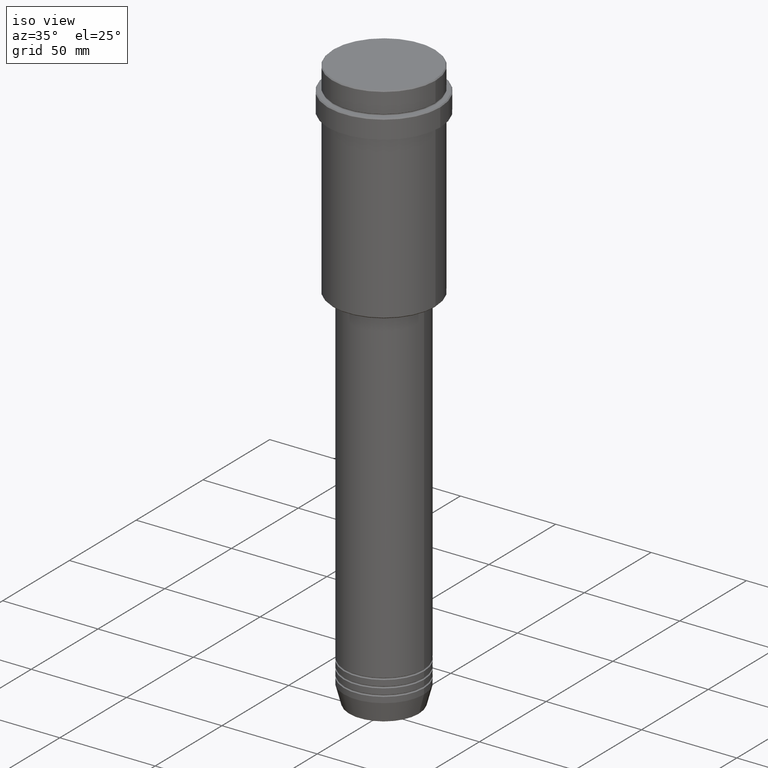
[diagram: clean part render]
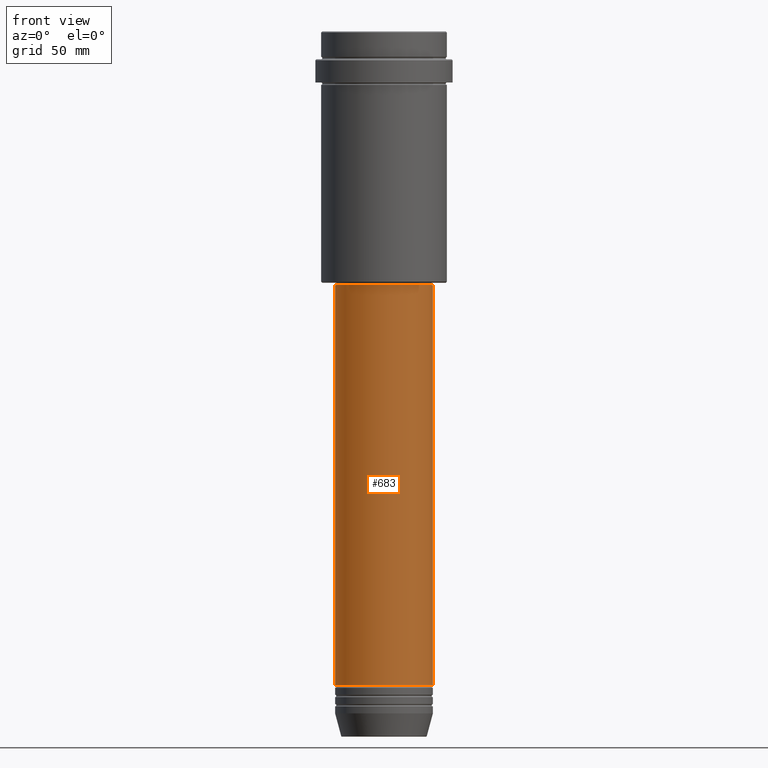
[diagram: tour spotlight — one face highlighted and labeled with its STEP entity id]
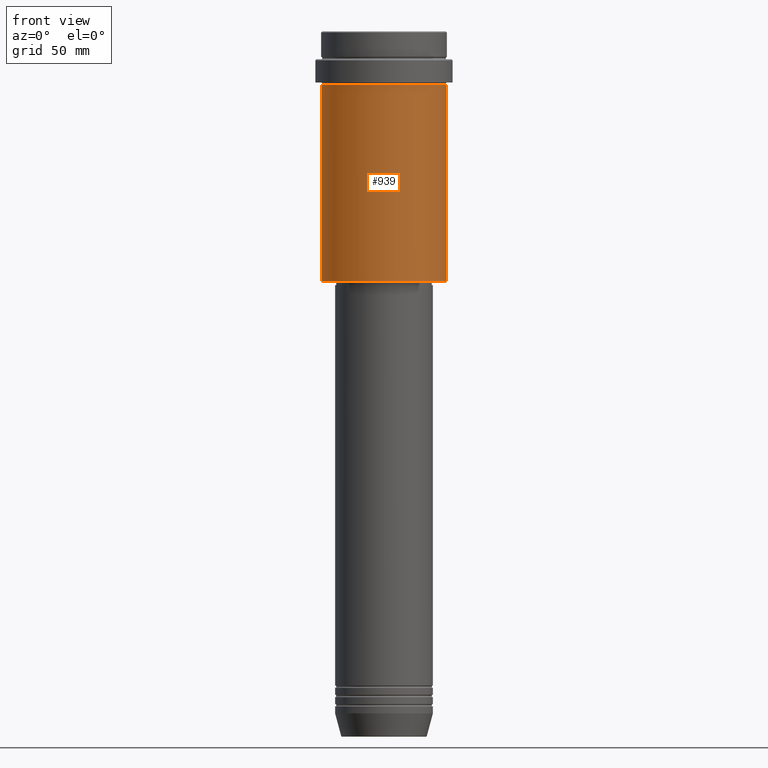
[diagram: tour spotlight — one face highlighted and labeled with its STEP entity id]
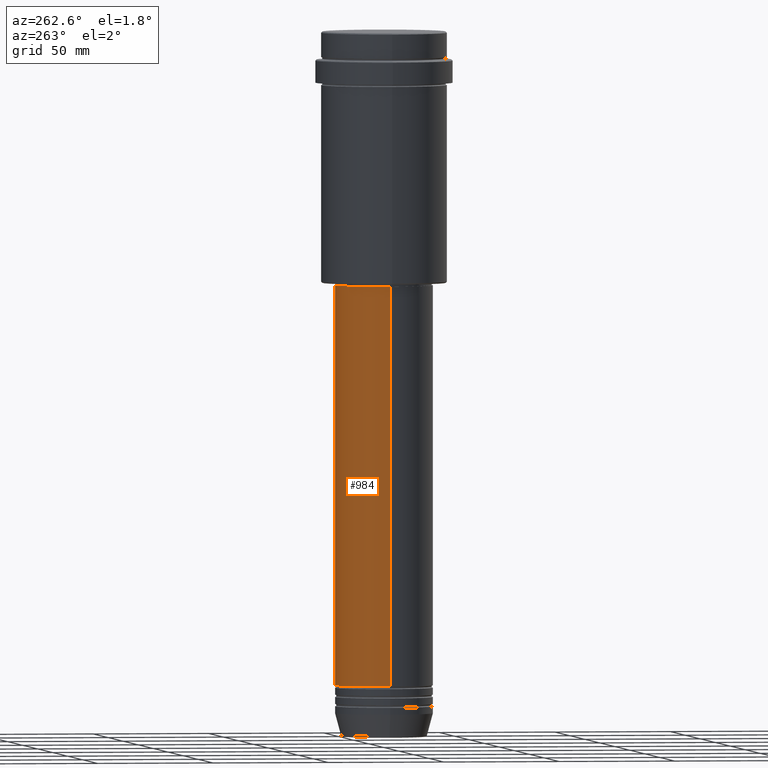
[diagram: tour spotlight — one face highlighted and labeled with its STEP entity id]
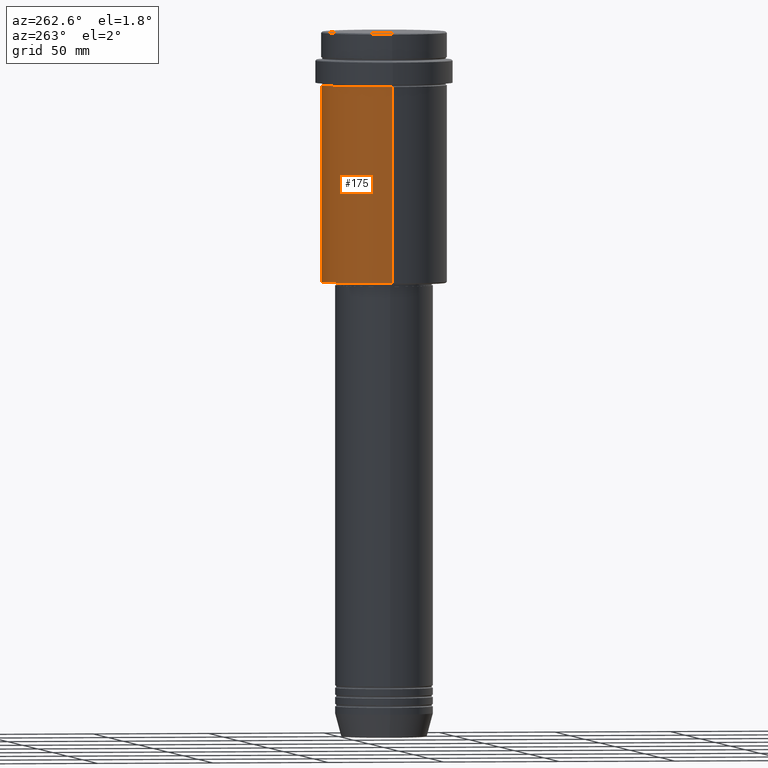
[diagram: tour spotlight — one face highlighted and labeled with its STEP entity id]
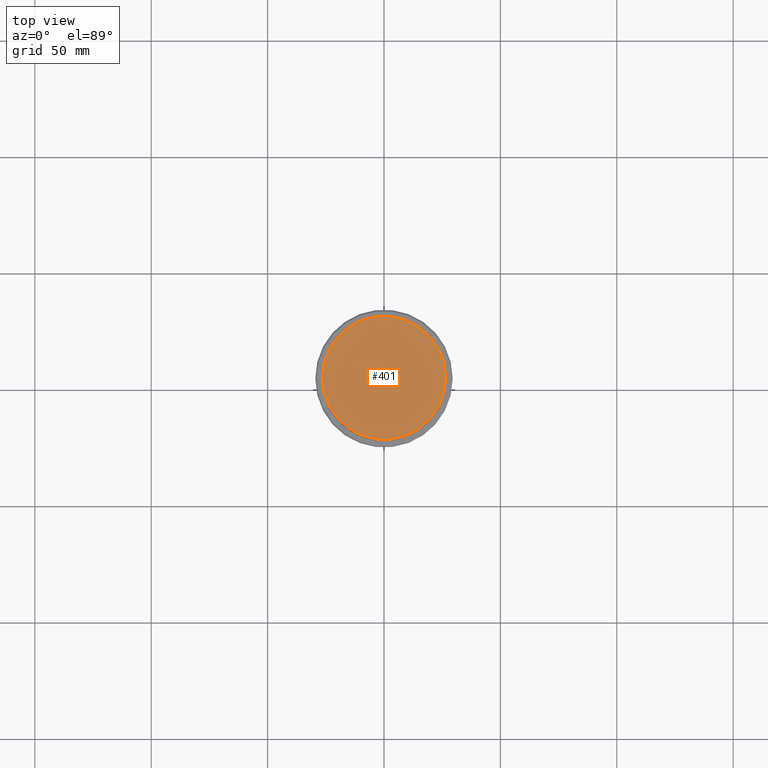
[diagram: tour spotlight — one face highlighted and labeled with its STEP entity id]
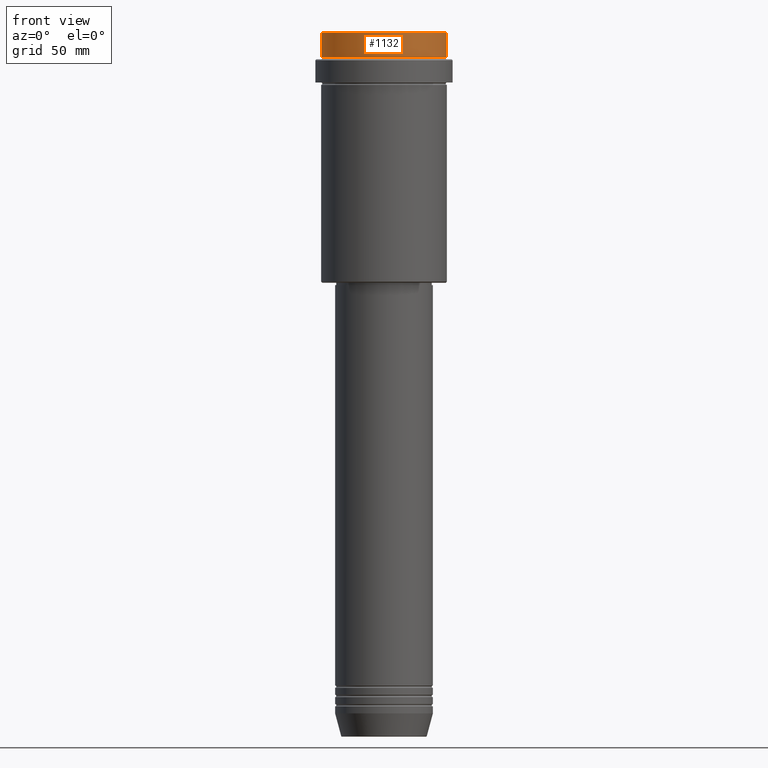
[diagram: tour spotlight — one face highlighted and labeled with its STEP entity id]
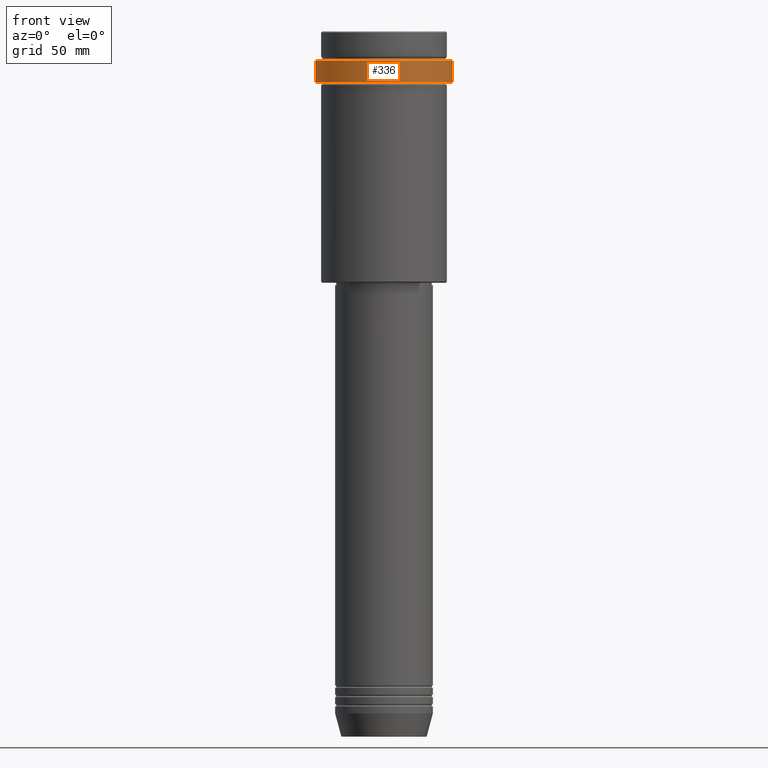
[diagram: tour spotlight — one face highlighted and labeled with its STEP entity id]
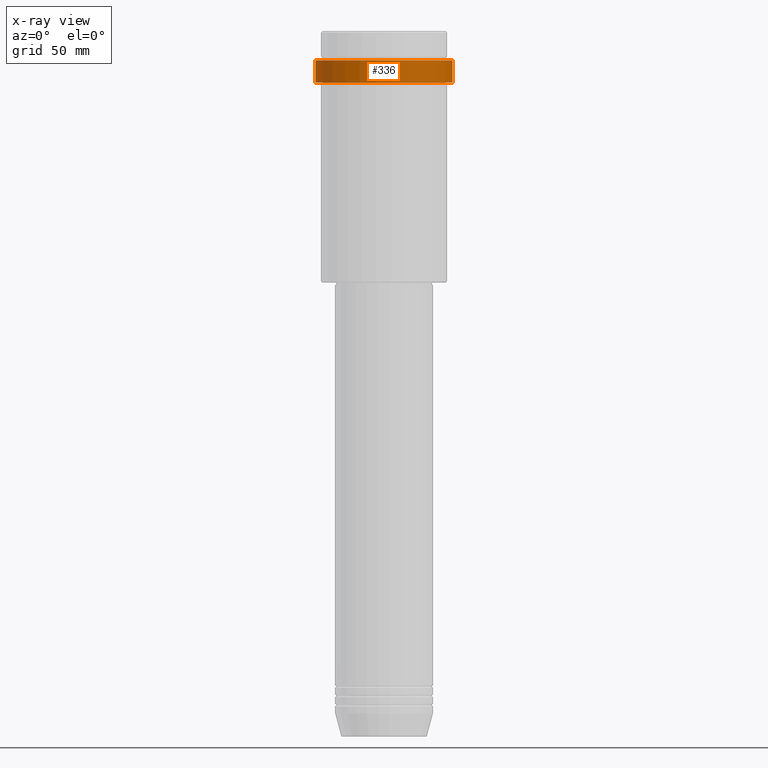
[diagram: x-ray of the same camera — body ghosted, this tour face saturated]
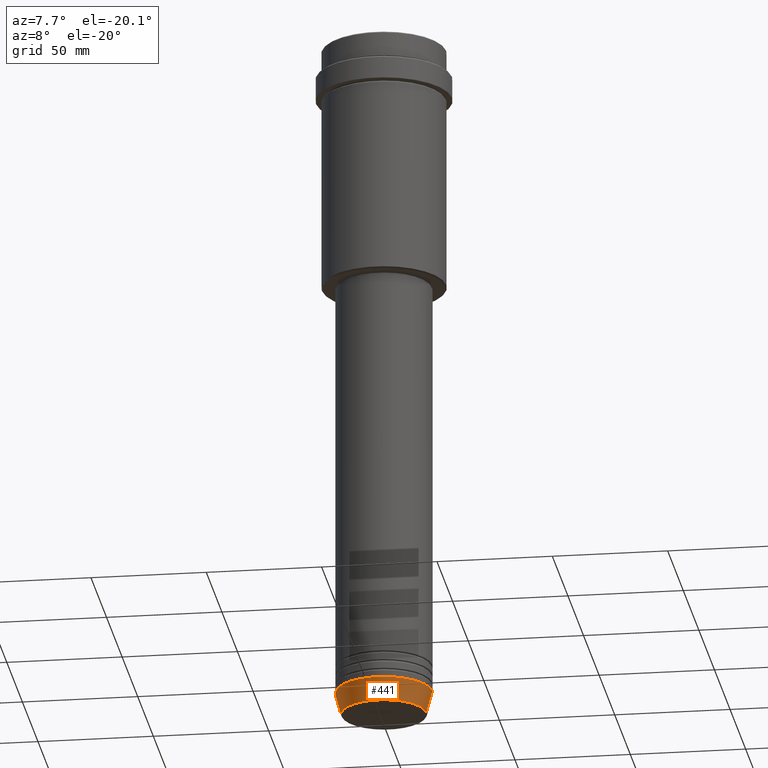
[diagram: tour spotlight — one face highlighted and labeled with its STEP entity id]
A machine part: a face-by-face anatomy tour. The part has 52 B-rep faces; the first image is the clean iso view, then the 8 largest visible faces are spotlighted one at a time (largest first), each with its STEP entity span.

Face 1 — front view, entity #683. In plain terms, the highlighted cylindrical surface (partial cylindrical patch) has radius 21 mm, axis along (-0, -0, 1).
Definition (entity closure, byte-faithful):
#4 = CARTESIAN_POINT ( 'NONE',  ( 21.00000000000000000, 0.000000000000000000, 0.000000000000000000 ) ) ;
#39 = ORIENTED_EDGE ( 'NONE', *, *, #613, .T. ) ;
#52 = CYLINDRICAL_SURFACE ( 'NONE', #696, 21.00000000000000000 ) ;
#57 = DIRECTION ( 'NONE',  ( 1.000000000000000000, 0.000000000000000000, 0.000000000000000000 ) ) ;
#137 = CIRCLE ( 'NONE', #805, 21.00000000000000000 ) ;
#152 = DIRECTION ( 'NONE',  ( 1.000000000000000000, 0.000000000000000000, 0.000000000000000000 ) ) ;
#168 = DIRECTION ( 'NONE',  ( 1.000000000000000000, 0.000000000000000000, 0.000000000000000000 ) ) ;
#170 = CARTESIAN_POINT ( 'NONE',  ( -21.00000000000000000, 2.571758278209441661E-15, -280.9999999999999432 ) ) ;
#213 = ORIENTED_EDGE ( 'NONE', *, *, #1128, .F. ) ;
#217 = LINE ( 'NONE', #4, #402 ) ;
#230 = VERTEX_POINT ( 'NONE', #170 ) ;
#387 = VERTEX_POINT ( 'NONE', #1331 ) ;
#398 = EDGE_CURVE ( 'NONE', #980, #387, #217, .T. ) ;
#402 = VECTOR ( 'NONE', #1108, 1000.000000000000000 ) ;
#444 = EDGE_LOOP ( 'NONE', ( #1009, #39, #859, #213 ) ) ;
#507 = FACE_OUTER_BOUND ( 'NONE', #444, .T. ) ;
#522 = VERTEX_POINT ( 'NONE', #878 ) ;
#584 = CIRCLE ( 'NONE', #764, 21.00000000000000000 ) ;
#613 = EDGE_CURVE ( 'NONE', #230, #980, #137, .T. ) ;
#683 = ADVANCED_FACE ( 'NONE', ( #507 ), #52, .T. ) ;
#696 = AXIS2_PLACEMENT_3D ( 'NONE', #1036, #1145, #57 ) ;
#698 = CARTESIAN_POINT ( 'NONE',  ( 0.000000000000000000, 0.000000000000000000, -280.9999999999999432 ) ) ;
#764 = AXIS2_PLACEMENT_3D ( 'NONE', #1243, #1142, #168 ) ;
#775 = CARTESIAN_POINT ( 'NONE',  ( 21.00000000000000000, 0.000000000000000000, -280.9999999999999432 ) ) ;
#805 = AXIS2_PLACEMENT_3D ( 'NONE', #698, #1126, #152 ) ;
#859 = ORIENTED_EDGE ( 'NONE', *, *, #398, .T. ) ;
#878 = CARTESIAN_POINT ( 'NONE',  ( -21.00000000000000000, 2.571758278209441661E-15, -108.9999999999999289 ) ) ;
#952 = LINE ( 'NONE', #1383, #1146 ) ;
#980 = VERTEX_POINT ( 'NONE', #775 ) ;
#1009 = ORIENTED_EDGE ( 'NONE', *, *, #1296, .F. ) ;
#1036 = CARTESIAN_POINT ( 'NONE',  ( 0.000000000000000000, 0.000000000000000000, 0.000000000000000000 ) ) ;
#1108 = DIRECTION ( 'NONE',  ( -0.000000000000000000, -0.000000000000000000, 1.000000000000000000 ) ) ;
#1126 = DIRECTION ( 'NONE',  ( -0.000000000000000000, -0.000000000000000000, 1.000000000000000000 ) ) ;
#1128 = EDGE_CURVE ( 'NONE', #522, #387, #584, .T. ) ;
#1142 = DIRECTION ( 'NONE',  ( -0.000000000000000000, -0.000000000000000000, 1.000000000000000000 ) ) ;
#1145 = DIRECTION ( 'NONE',  ( -0.000000000000000000, -0.000000000000000000, 1.000000000000000000 ) ) ;
#1146 = VECTOR ( 'NONE', #1152, 1000.000000000000000 ) ;
#1152 = DIRECTION ( 'NONE',  ( -0.000000000000000000, -0.000000000000000000, 1.000000000000000000 ) ) ;
#1243 = CARTESIAN_POINT ( 'NONE',  ( 0.000000000000000000, 0.000000000000000000, -108.9999999999999289 ) ) ;
#1296 = EDGE_CURVE ( 'NONE', #230, #522, #952, .T. ) ;
#1331 = CARTESIAN_POINT ( 'NONE',  ( 21.00000000000000000, 0.000000000000000000, -108.9999999999999289 ) ) ;
#1383 = CARTESIAN_POINT ( 'NONE',  ( -21.00000000000000000, 2.571758278209441661E-15, 0.000000000000000000 ) ) ;

Face 2 — front view, entity #939. In plain terms, the highlighted cylindrical surface (partial cylindrical patch) has radius 27 mm, axis along (-0, -0, 1).
Definition (entity closure, byte-faithful):
#139 = AXIS2_PLACEMENT_3D ( 'NONE', #947, #284, #959 ) ;
#147 = DIRECTION ( 'NONE',  ( -0.000000000000000000, -0.000000000000000000, 1.000000000000000000 ) ) ;
#148 = VERTEX_POINT ( 'NONE', #792 ) ;
#215 = FACE_OUTER_BOUND ( 'NONE', #499, .T. ) ;
#227 = ORIENTED_EDGE ( 'NONE', *, *, #654, .F. ) ;
#231 = DIRECTION ( 'NONE',  ( -0.000000000000000000, -0.000000000000000000, 1.000000000000000000 ) ) ;
#241 = CYLINDRICAL_SURFACE ( 'NONE', #308, 27.00000000000000355 ) ;
#271 = CARTESIAN_POINT ( 'NONE',  ( -27.00000000000000355, 3.306546357697854128E-15, 0.000000000000000000 ) ) ;
#284 = DIRECTION ( 'NONE',  ( -0.000000000000000000, -0.000000000000000000, 1.000000000000000000 ) ) ;
#308 = AXIS2_PLACEMENT_3D ( 'NONE', #335, #231, #325 ) ;
#325 = DIRECTION ( 'NONE',  ( 1.000000000000000000, 0.000000000000000000, 0.000000000000000000 ) ) ;
#335 = CARTESIAN_POINT ( 'NONE',  ( 0.000000000000000000, 0.000000000000000000, 0.000000000000000000 ) ) ;
#349 = CARTESIAN_POINT ( 'NONE',  ( 27.00000000000000355, 0.000000000000000000, 0.000000000000000000 ) ) ;
#423 = EDGE_CURVE ( 'NONE', #680, #1194, #1300, .T. ) ;
#472 = AXIS2_PLACEMENT_3D ( 'NONE', #1200, #1403, #567 ) ;
#499 = EDGE_LOOP ( 'NONE', ( #227, #1247, #1368, #941 ) ) ;
#562 = VECTOR ( 'NONE', #776, 1000.000000000000000 ) ;
#567 = DIRECTION ( 'NONE',  ( 1.000000000000000000, 0.000000000000000000, 0.000000000000000000 ) ) ;
#602 = VERTEX_POINT ( 'NONE', #687 ) ;
#617 = CARTESIAN_POINT ( 'NONE',  ( 27.00000000000000355, 0.000000000000000000, -107.4999999999999574 ) ) ;
#654 = EDGE_CURVE ( 'NONE', #148, #602, #1251, .T. ) ;
#680 = VERTEX_POINT ( 'NONE', #617 ) ;
#687 = CARTESIAN_POINT ( 'NONE',  ( -27.00000000000000355, 3.306546357697854128E-15, -23.00000000000001421 ) ) ;
#776 = DIRECTION ( 'NONE',  ( -0.000000000000000000, -0.000000000000000000, 1.000000000000000000 ) ) ;
#792 = CARTESIAN_POINT ( 'NONE',  ( -27.00000000000000355, 3.306546357697854128E-15, -107.4999999999999574 ) ) ;
#848 = EDGE_CURVE ( 'NONE', #602, #1194, #1164, .T. ) ;
#939 = ADVANCED_FACE ( 'NONE', ( #215 ), #241, .T. ) ;
#941 = ORIENTED_EDGE ( 'NONE', *, *, #848, .F. ) ;
#947 = CARTESIAN_POINT ( 'NONE',  ( 0.000000000000000000, 0.000000000000000000, -107.4999999999999574 ) ) ;
#959 = DIRECTION ( 'NONE',  ( -1.000000000000000000, 0.000000000000000000, 0.000000000000000000 ) ) ;
#1034 = CIRCLE ( 'NONE', #139, 27.00000000000000355 ) ;
#1061 = CARTESIAN_POINT ( 'NONE',  ( 27.00000000000000355, 0.000000000000000000, -23.00000000000001421 ) ) ;
#1164 = CIRCLE ( 'NONE', #472, 27.00000000000000355 ) ;
#1183 = EDGE_CURVE ( 'NONE', #148, #680, #1034, .T. ) ;
#1194 = VERTEX_POINT ( 'NONE', #1061 ) ;
#1200 = CARTESIAN_POINT ( 'NONE',  ( 0.000000000000000000, 0.000000000000000000, -23.00000000000001421 ) ) ;
#1247 = ORIENTED_EDGE ( 'NONE', *, *, #1183, .T. ) ;
#1251 = LINE ( 'NONE', #271, #1258 ) ;
#1258 = VECTOR ( 'NONE', #147, 1000.000000000000000 ) ;
#1300 = LINE ( 'NONE', #349, #562 ) ;
#1368 = ORIENTED_EDGE ( 'NONE', *, *, #423, .T. ) ;
#1403 = DIRECTION ( 'NONE',  ( -0.000000000000000000, -0.000000000000000000, 1.000000000000000000 ) ) ;

Face 3 — auxiliary view, entity #984. In plain terms, the highlighted cylindrical surface (partial cylindrical patch) has radius 21 mm, axis along (-0, -0, 1).
Definition (entity closure, byte-faithful):
#4 = CARTESIAN_POINT ( 'NONE',  ( 21.00000000000000000, 0.000000000000000000, 0.000000000000000000 ) ) ;
#99 = CIRCLE ( 'NONE', #189, 21.00000000000000000 ) ;
#112 = EDGE_CURVE ( 'NONE', #387, #522, #99, .T. ) ;
#170 = CARTESIAN_POINT ( 'NONE',  ( -21.00000000000000000, 2.571758278209441661E-15, -280.9999999999999432 ) ) ;
#182 = DIRECTION ( 'NONE',  ( 1.000000000000000000, 0.000000000000000000, 0.000000000000000000 ) ) ;
#189 = AXIS2_PLACEMENT_3D ( 'NONE', #998, #797, #690 ) ;
#217 = LINE ( 'NONE', #4, #402 ) ;
#230 = VERTEX_POINT ( 'NONE', #170 ) ;
#387 = VERTEX_POINT ( 'NONE', #1331 ) ;
#398 = EDGE_CURVE ( 'NONE', #980, #387, #217, .T. ) ;
#402 = VECTOR ( 'NONE', #1108, 1000.000000000000000 ) ;
#445 = CARTESIAN_POINT ( 'NONE',  ( 0.000000000000000000, 0.000000000000000000, 0.000000000000000000 ) ) ;
#454 = ORIENTED_EDGE ( 'NONE', *, *, #774, .T. ) ;
#522 = VERTEX_POINT ( 'NONE', #878 ) ;
#540 = DIRECTION ( 'NONE',  ( -0.000000000000000000, -0.000000000000000000, 1.000000000000000000 ) ) ;
#546 = FACE_OUTER_BOUND ( 'NONE', #1017, .T. ) ;
#610 = AXIS2_PLACEMENT_3D ( 'NONE', #445, #868, #662 ) ;
#662 = DIRECTION ( 'NONE',  ( 1.000000000000000000, 0.000000000000000000, 0.000000000000000000 ) ) ;
#679 = ORIENTED_EDGE ( 'NONE', *, *, #1296, .T. ) ;
#690 = DIRECTION ( 'NONE',  ( 1.000000000000000000, 0.000000000000000000, 0.000000000000000000 ) ) ;
#774 = EDGE_CURVE ( 'NONE', #980, #230, #847, .T. ) ;
#775 = CARTESIAN_POINT ( 'NONE',  ( 21.00000000000000000, 0.000000000000000000, -280.9999999999999432 ) ) ;
#797 = DIRECTION ( 'NONE',  ( -0.000000000000000000, -0.000000000000000000, 1.000000000000000000 ) ) ;
#847 = CIRCLE ( 'NONE', #1279, 21.00000000000000000 ) ;
#854 = CARTESIAN_POINT ( 'NONE',  ( 0.000000000000000000, 0.000000000000000000, -280.9999999999999432 ) ) ;
#868 = DIRECTION ( 'NONE',  ( -0.000000000000000000, -0.000000000000000000, 1.000000000000000000 ) ) ;
#878 = CARTESIAN_POINT ( 'NONE',  ( -21.00000000000000000, 2.571758278209441661E-15, -108.9999999999999289 ) ) ;
#935 = ORIENTED_EDGE ( 'NONE', *, *, #112, .F. ) ;
#952 = LINE ( 'NONE', #1383, #1146 ) ;
#976 = CYLINDRICAL_SURFACE ( 'NONE', #610, 21.00000000000000000 ) ;
#980 = VERTEX_POINT ( 'NONE', #775 ) ;
#984 = ADVANCED_FACE ( 'NONE', ( #546 ), #976, .T. ) ;
#998 = CARTESIAN_POINT ( 'NONE',  ( 0.000000000000000000, 0.000000000000000000, -108.9999999999999289 ) ) ;
#1017 = EDGE_LOOP ( 'NONE', ( #454, #679, #935, #1305 ) ) ;
#1108 = DIRECTION ( 'NONE',  ( -0.000000000000000000, -0.000000000000000000, 1.000000000000000000 ) ) ;
#1146 = VECTOR ( 'NONE', #1152, 1000.000000000000000 ) ;
#1152 = DIRECTION ( 'NONE',  ( -0.000000000000000000, -0.000000000000000000, 1.000000000000000000 ) ) ;
#1279 = AXIS2_PLACEMENT_3D ( 'NONE', #854, #540, #182 ) ;
#1296 = EDGE_CURVE ( 'NONE', #230, #522, #952, .T. ) ;
#1305 = ORIENTED_EDGE ( 'NONE', *, *, #398, .F. ) ;
#1331 = CARTESIAN_POINT ( 'NONE',  ( 21.00000000000000000, 0.000000000000000000, -108.9999999999999289 ) ) ;
#1383 = CARTESIAN_POINT ( 'NONE',  ( -21.00000000000000000, 2.571758278209441661E-15, 0.000000000000000000 ) ) ;

Face 4 — auxiliary view, entity #175. In plain terms, the highlighted cylindrical surface (partial cylindrical patch) has radius 27 mm, axis along (-0, -0, 1).
Definition (entity closure, byte-faithful):
#67 = DIRECTION ( 'NONE',  ( -1.000000000000000000, 0.000000000000000000, 0.000000000000000000 ) ) ;
#75 = AXIS2_PLACEMENT_3D ( 'NONE', #1028, #1263, #1366 ) ;
#147 = DIRECTION ( 'NONE',  ( -0.000000000000000000, -0.000000000000000000, 1.000000000000000000 ) ) ;
#148 = VERTEX_POINT ( 'NONE', #792 ) ;
#175 = ADVANCED_FACE ( 'NONE', ( #594 ), #1239, .T. ) ;
#186 = EDGE_LOOP ( 'NONE', ( #1179, #297, #571, #566 ) ) ;
#271 = CARTESIAN_POINT ( 'NONE',  ( -27.00000000000000355, 3.306546357697854128E-15, 0.000000000000000000 ) ) ;
#297 = ORIENTED_EDGE ( 'NONE', *, *, #654, .T. ) ;
#310 = EDGE_CURVE ( 'NONE', #680, #148, #740, .T. ) ;
#349 = CARTESIAN_POINT ( 'NONE',  ( 27.00000000000000355, 0.000000000000000000, 0.000000000000000000 ) ) ;
#355 = AXIS2_PLACEMENT_3D ( 'NONE', #1380, #424, #67 ) ;
#423 = EDGE_CURVE ( 'NONE', #680, #1194, #1300, .T. ) ;
#424 = DIRECTION ( 'NONE',  ( -0.000000000000000000, -0.000000000000000000, 1.000000000000000000 ) ) ;
#562 = VECTOR ( 'NONE', #776, 1000.000000000000000 ) ;
#566 = ORIENTED_EDGE ( 'NONE', *, *, #423, .F. ) ;
#571 = ORIENTED_EDGE ( 'NONE', *, *, #839, .F. ) ;
#594 = FACE_OUTER_BOUND ( 'NONE', #186, .T. ) ;
#602 = VERTEX_POINT ( 'NONE', #687 ) ;
#617 = CARTESIAN_POINT ( 'NONE',  ( 27.00000000000000355, 0.000000000000000000, -107.4999999999999574 ) ) ;
#654 = EDGE_CURVE ( 'NONE', #148, #602, #1251, .T. ) ;
#680 = VERTEX_POINT ( 'NONE', #617 ) ;
#687 = CARTESIAN_POINT ( 'NONE',  ( -27.00000000000000355, 3.306546357697854128E-15, -23.00000000000001421 ) ) ;
#721 = AXIS2_PLACEMENT_3D ( 'NONE', #1293, #771, #1313 ) ;
#740 = CIRCLE ( 'NONE', #355, 27.00000000000000355 ) ;
#771 = DIRECTION ( 'NONE',  ( -0.000000000000000000, -0.000000000000000000, 1.000000000000000000 ) ) ;
#776 = DIRECTION ( 'NONE',  ( -0.000000000000000000, -0.000000000000000000, 1.000000000000000000 ) ) ;
#792 = CARTESIAN_POINT ( 'NONE',  ( -27.00000000000000355, 3.306546357697854128E-15, -107.4999999999999574 ) ) ;
#839 = EDGE_CURVE ( 'NONE', #1194, #602, #1325, .T. ) ;
#1028 = CARTESIAN_POINT ( 'NONE',  ( 0.000000000000000000, 0.000000000000000000, 0.000000000000000000 ) ) ;
#1061 = CARTESIAN_POINT ( 'NONE',  ( 27.00000000000000355, 0.000000000000000000, -23.00000000000001421 ) ) ;
#1179 = ORIENTED_EDGE ( 'NONE', *, *, #310, .T. ) ;
#1194 = VERTEX_POINT ( 'NONE', #1061 ) ;
#1239 = CYLINDRICAL_SURFACE ( 'NONE', #75, 27.00000000000000355 ) ;
#1251 = LINE ( 'NONE', #271, #1258 ) ;
#1258 = VECTOR ( 'NONE', #147, 1000.000000000000000 ) ;
#1263 = DIRECTION ( 'NONE',  ( -0.000000000000000000, -0.000000000000000000, 1.000000000000000000 ) ) ;
#1293 = CARTESIAN_POINT ( 'NONE',  ( 0.000000000000000000, 0.000000000000000000, -23.00000000000001421 ) ) ;
#1300 = LINE ( 'NONE', #349, #562 ) ;
#1313 = DIRECTION ( 'NONE',  ( 1.000000000000000000, 0.000000000000000000, 0.000000000000000000 ) ) ;
#1325 = CIRCLE ( 'NONE', #721, 27.00000000000000355 ) ;
#1366 = DIRECTION ( 'NONE',  ( 1.000000000000000000, 0.000000000000000000, 0.000000000000000000 ) ) ;
#1380 = CARTESIAN_POINT ( 'NONE',  ( 0.000000000000000000, 0.000000000000000000, -107.4999999999999574 ) ) ;

Face 5 — top view, entity #401. In plain terms, the highlighted planar face has unit normal (0, -0, 1).
Definition (entity closure, byte-faithful):
#42 = AXIS2_PLACEMENT_3D ( 'NONE', #119, #1100, #772 ) ;
#60 = EDGE_CURVE ( 'NONE', #1226, #1131, #406, .T. ) ;
#91 = DIRECTION ( 'NONE',  ( 1.000000000000000000, 0.000000000000000000, 0.000000000000000000 ) ) ;
#119 = CARTESIAN_POINT ( 'NONE',  ( 0.000000000000000000, 0.000000000000000000, 0.000000000000000000 ) ) ;
#187 = CARTESIAN_POINT ( 'NONE',  ( -26.49999999999999645, 0.000000000000000000, 0.000000000000000000 ) ) ;
#223 = FACE_OUTER_BOUND ( 'NONE', #614, .T. ) ;
#250 = CARTESIAN_POINT ( 'NONE',  ( 0.000000000000000000, 0.000000000000000000, 0.000000000000000000 ) ) ;
#258 = AXIS2_PLACEMENT_3D ( 'NONE', #1321, #559, #996 ) ;
#401 = ADVANCED_FACE ( 'NONE', ( #223 ), #1316, .T. ) ;
#406 = CIRCLE ( 'NONE', #989, 26.49999999999999645 ) ;
#559 = DIRECTION ( 'NONE',  ( -0.000000000000000000, -0.000000000000000000, 1.000000000000000000 ) ) ;
#614 = EDGE_LOOP ( 'NONE', ( #1227, #1398 ) ) ;
#686 = CARTESIAN_POINT ( 'NONE',  ( 26.49999999999999645, 3.275930187719169552E-15, 0.000000000000000000 ) ) ;
#772 = DIRECTION ( 'NONE',  ( 1.000000000000000000, 0.000000000000000000, 0.000000000000000000 ) ) ;
#898 = EDGE_CURVE ( 'NONE', #1131, #1226, #917, .T. ) ;
#917 = CIRCLE ( 'NONE', #258, 26.49999999999999645 ) ;
#989 = AXIS2_PLACEMENT_3D ( 'NONE', #250, #1286, #91 ) ;
#996 = DIRECTION ( 'NONE',  ( 1.000000000000000000, 0.000000000000000000, 0.000000000000000000 ) ) ;
#1100 = DIRECTION ( 'NONE',  ( 0.000000000000000000, -0.000000000000000000, 1.000000000000000000 ) ) ;
#1131 = VERTEX_POINT ( 'NONE', #686 ) ;
#1226 = VERTEX_POINT ( 'NONE', #187 ) ;
#1227 = ORIENTED_EDGE ( 'NONE', *, *, #60, .T. ) ;
#1286 = DIRECTION ( 'NONE',  ( -0.000000000000000000, -0.000000000000000000, 1.000000000000000000 ) ) ;
#1316 = PLANE ( 'NONE',  #42 ) ;
#1321 = CARTESIAN_POINT ( 'NONE',  ( 0.000000000000000000, 0.000000000000000000, 0.000000000000000000 ) ) ;
#1398 = ORIENTED_EDGE ( 'NONE', *, *, #898, .T. ) ;

Face 6 — front view, entity #1132. In plain terms, the highlighted cylindrical surface (partial cylindrical patch) has radius 27 mm, axis along (-0, -0, 1).
Definition (entity closure, byte-faithful):
#26 = CARTESIAN_POINT ( 'NONE',  ( 27.00000000000000355, 0.000000000000000000, -11.00000000000000178 ) ) ;
#38 = DIRECTION ( 'NONE',  ( 0.000000000000000000, 0.000000000000000000, -1.000000000000000000 ) ) ;
#135 = FACE_OUTER_BOUND ( 'NONE', #1024, .T. ) ;
#343 = VERTEX_POINT ( 'NONE', #520 ) ;
#359 = EDGE_CURVE ( 'NONE', #343, #1349, #1406, .T. ) ;
#370 = DIRECTION ( 'NONE',  ( -0.000000000000000000, -0.000000000000000000, 1.000000000000000000 ) ) ;
#386 = DIRECTION ( 'NONE',  ( 1.000000000000000000, 0.000000000000000000, 0.000000000000000000 ) ) ;
#390 = DIRECTION ( 'NONE',  ( -0.000000000000000000, -0.000000000000000000, 1.000000000000000000 ) ) ;
#405 = CIRCLE ( 'NONE', #1189, 27.00000000000000355 ) ;
#520 = CARTESIAN_POINT ( 'NONE',  ( -27.00000000000000355, 3.306546357697854128E-15, -11.00000000000000178 ) ) ;
#591 = CYLINDRICAL_SURFACE ( 'NONE', #1055, 27.00000000000000355 ) ;
#598 = CARTESIAN_POINT ( 'NONE',  ( 27.00000000000000355, 0.000000000000000000, -0.5000000000000073275 ) ) ;
#633 = VERTEX_POINT ( 'NONE', #598 ) ;
#645 = VERTEX_POINT ( 'NONE', #26 ) ;
#723 = CIRCLE ( 'NONE', #1121, 27.00000000000000355 ) ;
#763 = DIRECTION ( 'NONE',  ( -0.000000000000000000, -0.000000000000000000, 1.000000000000000000 ) ) ;
#768 = ORIENTED_EDGE ( 'NONE', *, *, #359, .F. ) ;
#794 = CARTESIAN_POINT ( 'NONE',  ( 0.000000000000000000, 0.000000000000000000, -0.5000000000000073275 ) ) ;
#799 = DIRECTION ( 'NONE',  ( 1.000000000000000000, 0.000000000000000000, 0.000000000000000000 ) ) ;
#804 = LINE ( 'NONE', #1357, #826 ) ;
#826 = VECTOR ( 'NONE', #390, 1000.000000000000000 ) ;
#857 = EDGE_CURVE ( 'NONE', #343, #645, #723, .T. ) ;
#890 = VECTOR ( 'NONE', #763, 1000.000000000000000 ) ;
#1024 = EDGE_LOOP ( 'NONE', ( #768, #1412, #1275, #1031 ) ) ;
#1031 = ORIENTED_EDGE ( 'NONE', *, *, #1125, .T. ) ;
#1055 = AXIS2_PLACEMENT_3D ( 'NONE', #1334, #370, #799 ) ;
#1103 = EDGE_CURVE ( 'NONE', #645, #633, #804, .T. ) ;
#1121 = AXIS2_PLACEMENT_3D ( 'NONE', #1195, #1204, #1217 ) ;
#1125 = EDGE_CURVE ( 'NONE', #633, #1349, #405, .T. ) ;
#1132 = ADVANCED_FACE ( 'NONE', ( #135 ), #591, .T. ) ;
#1189 = AXIS2_PLACEMENT_3D ( 'NONE', #794, #38, #386 ) ;
#1195 = CARTESIAN_POINT ( 'NONE',  ( 0.000000000000000000, 0.000000000000000000, -11.00000000000000178 ) ) ;
#1204 = DIRECTION ( 'NONE',  ( -0.000000000000000000, -0.000000000000000000, 1.000000000000000000 ) ) ;
#1217 = DIRECTION ( 'NONE',  ( 1.000000000000000000, 0.000000000000000000, 0.000000000000000000 ) ) ;
#1275 = ORIENTED_EDGE ( 'NONE', *, *, #1103, .T. ) ;
#1294 = CARTESIAN_POINT ( 'NONE',  ( -27.00000000000000355, 3.306546357697854128E-15, 0.000000000000000000 ) ) ;
#1309 = CARTESIAN_POINT ( 'NONE',  ( -27.00000000000000355, 3.306546357697854128E-15, -0.5000000000000073275 ) ) ;
#1334 = CARTESIAN_POINT ( 'NONE',  ( 0.000000000000000000, 0.000000000000000000, 0.000000000000000000 ) ) ;
#1349 = VERTEX_POINT ( 'NONE', #1309 ) ;
#1357 = CARTESIAN_POINT ( 'NONE',  ( 27.00000000000000355, 0.000000000000000000, 0.000000000000000000 ) ) ;
#1406 = LINE ( 'NONE', #1294, #890 ) ;
#1412 = ORIENTED_EDGE ( 'NONE', *, *, #857, .T. ) ;

Face 7 — front view, entity #336. An x-ray twin of the same camera follows (body ghosted, this face saturated) — the face is partly hidden behind the body. In plain terms, the highlighted cylindrical surface (partial cylindrical patch) has radius 29.5 mm, axis along (-0, -0, 1).
Definition (entity closure, byte-faithful):
#64 = DIRECTION ( 'NONE',  ( -0.000000000000000000, -0.000000000000000000, 1.000000000000000000 ) ) ;
#82 = DIRECTION ( 'NONE',  ( 0.000000000000000000, 0.000000000000000000, -1.000000000000000000 ) ) ;
#183 = DIRECTION ( 'NONE',  ( -0.000000000000000000, -0.000000000000000000, 1.000000000000000000 ) ) ;
#255 = CARTESIAN_POINT ( 'NONE',  ( 29.50000000000000000, 0.000000000000000000, -12.50000000000000355 ) ) ;
#299 = LINE ( 'NONE', #1049, #1391 ) ;
#305 = EDGE_CURVE ( 'NONE', #600, #885, #1030, .T. ) ;
#329 = AXIS2_PLACEMENT_3D ( 'NONE', #834, #183, #864 ) ;
#336 = ADVANCED_FACE ( 'NONE', ( #751 ), #1375, .T. ) ;
#358 = DIRECTION ( 'NONE',  ( 1.000000000000000000, 0.000000000000000000, 0.000000000000000000 ) ) ;
#378 = EDGE_CURVE ( 'NONE', #517, #457, #822, .T. ) ;
#419 = ORIENTED_EDGE ( 'NONE', *, *, #378, .T. ) ;
#434 = CARTESIAN_POINT ( 'NONE',  ( 0.000000000000000000, 0.000000000000000000, -12.50000000000000355 ) ) ;
#457 = VERTEX_POINT ( 'NONE', #1201 ) ;
#517 = VERTEX_POINT ( 'NONE', #574 ) ;
#524 = ORIENTED_EDGE ( 'NONE', *, *, #305, .T. ) ;
#552 = DIRECTION ( 'NONE',  ( -0.000000000000000000, -0.000000000000000000, 1.000000000000000000 ) ) ;
#563 = CARTESIAN_POINT ( 'NONE',  ( 0.000000000000000000, 0.000000000000000000, -22.00000000000000711 ) ) ;
#574 = CARTESIAN_POINT ( 'NONE',  ( -29.49999999999999645, 3.612708057484690815E-15, -22.00000000000000711 ) ) ;
#600 = VERTEX_POINT ( 'NONE', #255 ) ;
#650 = EDGE_CURVE ( 'NONE', #517, #885, #919, .T. ) ;
#751 = FACE_OUTER_BOUND ( 'NONE', #1070, .T. ) ;
#812 = EDGE_CURVE ( 'NONE', #457, #600, #299, .T. ) ;
#822 = CIRCLE ( 'NONE', #1171, 29.49999999999999645 ) ;
#834 = CARTESIAN_POINT ( 'NONE',  ( 0.000000000000000000, 0.000000000000000000, 0.000000000000000000 ) ) ;
#864 = DIRECTION ( 'NONE',  ( 1.000000000000000000, 0.000000000000000000, 0.000000000000000000 ) ) ;
#885 = VERTEX_POINT ( 'NONE', #887 ) ;
#887 = CARTESIAN_POINT ( 'NONE',  ( -29.50000000000000000, 3.612708057484691604E-15, -12.50000000000000355 ) ) ;
#919 = LINE ( 'NONE', #1043, #1075 ) ;
#1030 = CIRCLE ( 'NONE', #1140, 29.50000000000000000 ) ;
#1043 = CARTESIAN_POINT ( 'NONE',  ( -29.50000000000000000, 3.612708057484691604E-15, 0.000000000000000000 ) ) ;
#1049 = CARTESIAN_POINT ( 'NONE',  ( 29.50000000000000000, 0.000000000000000000, 0.000000000000000000 ) ) ;
#1070 = EDGE_LOOP ( 'NONE', ( #1402, #419, #1235, #524 ) ) ;
#1075 = VECTOR ( 'NONE', #1113, 1000.000000000000000 ) ;
#1113 = DIRECTION ( 'NONE',  ( -0.000000000000000000, -0.000000000000000000, 1.000000000000000000 ) ) ;
#1140 = AXIS2_PLACEMENT_3D ( 'NONE', #434, #82, #1385 ) ;
#1171 = AXIS2_PLACEMENT_3D ( 'NONE', #563, #552, #358 ) ;
#1201 = CARTESIAN_POINT ( 'NONE',  ( 29.49999999999999645, 0.000000000000000000, -22.00000000000000711 ) ) ;
#1235 = ORIENTED_EDGE ( 'NONE', *, *, #812, .T. ) ;
#1375 = CYLINDRICAL_SURFACE ( 'NONE', #329, 29.50000000000000000 ) ;
#1385 = DIRECTION ( 'NONE',  ( 1.000000000000000000, 0.000000000000000000, 0.000000000000000000 ) ) ;
#1391 = VECTOR ( 'NONE', #64, 1000.000000000000000 ) ;
#1402 = ORIENTED_EDGE ( 'NONE', *, *, #650, .F. ) ;

Face 8 — auxiliary view, entity #441. In plain terms, the highlighted conical surface has half-angle 15 deg.
Definition (entity closure, byte-faithful):
#94 = AXIS2_PLACEMENT_3D ( 'NONE', #326, #411, #100 ) ;
#100 = DIRECTION ( 'NONE',  ( 1.000000000000000000, 0.000000000000000000, 0.000000000000000000 ) ) ;
#106 = CARTESIAN_POINT ( 'NONE',  ( 0.000000000000000000, 0.000000000000000000, -293.0000000000000568 ) ) ;
#109 = ORIENTED_EDGE ( 'NONE', *, *, #570, .T. ) ;
#158 = DIRECTION ( 'NONE',  ( -0.2588190451025211836, 3.169619151431770488E-17, 0.9659258262890680902 ) ) ;
#169 = CARTESIAN_POINT ( 'NONE',  ( 21.00000000000000000, 0.000000000000000000, -293.0000000000000568 ) ) ;
#273 = EDGE_CURVE ( 'NONE', #704, #862, #585, .T. ) ;
#298 = CARTESIAN_POINT ( 'NONE',  ( 18.41980749484383750, 0.000000000000000000, -302.6294095225512706 ) ) ;
#315 = EDGE_CURVE ( 'NONE', #416, #1269, #532, .T. ) ;
#326 = CARTESIAN_POINT ( 'NONE',  ( 0.000000000000000000, 0.000000000000000000, -302.6294095225512706 ) ) ;
#340 = ORIENTED_EDGE ( 'NONE', *, *, #273, .F. ) ;
#345 = LINE ( 'NONE', #169, #1209 ) ;
#367 = FACE_OUTER_BOUND ( 'NONE', #761, .T. ) ;
#411 = DIRECTION ( 'NONE',  ( -0.000000000000000000, -0.000000000000000000, 1.000000000000000000 ) ) ;
#416 = VERTEX_POINT ( 'NONE', #897 ) ;
#441 = ADVANCED_FACE ( 'NONE', ( #367 ), #747, .T. ) ;
#453 = CARTESIAN_POINT ( 'NONE',  ( 21.00000000000000000, 0.000000000000000000, -293.0000000000000568 ) ) ;
#532 = CIRCLE ( 'NONE', #94, 18.41980749484383750 ) ;
#570 = EDGE_CURVE ( 'NONE', #1269, #862, #345, .T. ) ;
#579 = CARTESIAN_POINT ( 'NONE',  ( -21.00000000000000000, 2.571758278209441661E-15, -293.0000000000000568 ) ) ;
#585 = CIRCLE ( 'NONE', #767, 21.00000000000000000 ) ;
#605 = AXIS2_PLACEMENT_3D ( 'NONE', #106, #1089, #1218 ) ;
#635 = CARTESIAN_POINT ( 'NONE',  ( -21.00000000000000000, 2.571758278209441661E-15, -293.0000000000000568 ) ) ;
#704 = VERTEX_POINT ( 'NONE', #635 ) ;
#747 = CONICAL_SURFACE ( 'NONE', #605, 21.00000000000000000, 0.2617993877991499074 ) ;
#761 = EDGE_LOOP ( 'NONE', ( #1196, #1172, #109, #340 ) ) ;
#767 = AXIS2_PLACEMENT_3D ( 'NONE', #1015, #801, #1155 ) ;
#801 = DIRECTION ( 'NONE',  ( -0.000000000000000000, -0.000000000000000000, 1.000000000000000000 ) ) ;
#862 = VERTEX_POINT ( 'NONE', #453 ) ;
#897 = CARTESIAN_POINT ( 'NONE',  ( -18.41980749484383750, 2.413767053578267458E-15, -302.6294095225512706 ) ) ;
#1015 = CARTESIAN_POINT ( 'NONE',  ( 0.000000000000000000, 0.000000000000000000, -293.0000000000000568 ) ) ;
#1022 = EDGE_CURVE ( 'NONE', #416, #704, #1350, .T. ) ;
#1089 = DIRECTION ( 'NONE',  ( -0.000000000000000000, -0.000000000000000000, 1.000000000000000000 ) ) ;
#1138 = DIRECTION ( 'NONE',  ( 0.2588190451025211836, 0.000000000000000000, 0.9659258262890680902 ) ) ;
#1155 = DIRECTION ( 'NONE',  ( 1.000000000000000000, 0.000000000000000000, 0.000000000000000000 ) ) ;
#1172 = ORIENTED_EDGE ( 'NONE', *, *, #315, .T. ) ;
#1196 = ORIENTED_EDGE ( 'NONE', *, *, #1022, .F. ) ;
#1209 = VECTOR ( 'NONE', #1138, 1000.000000000000114 ) ;
#1218 = DIRECTION ( 'NONE',  ( 1.000000000000000000, 0.000000000000000000, 0.000000000000000000 ) ) ;
#1269 = VERTEX_POINT ( 'NONE', #298 ) ;
#1350 = LINE ( 'NONE', #579, #1393 ) ;
#1393 = VECTOR ( 'NONE', #158, 1000.000000000000114 ) ;